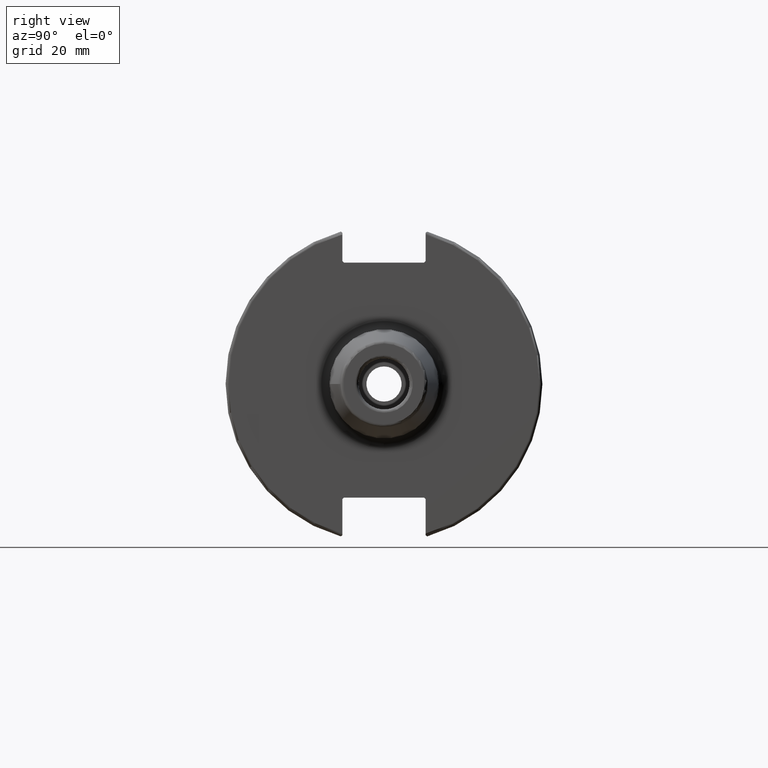
[diagram: clean part render]
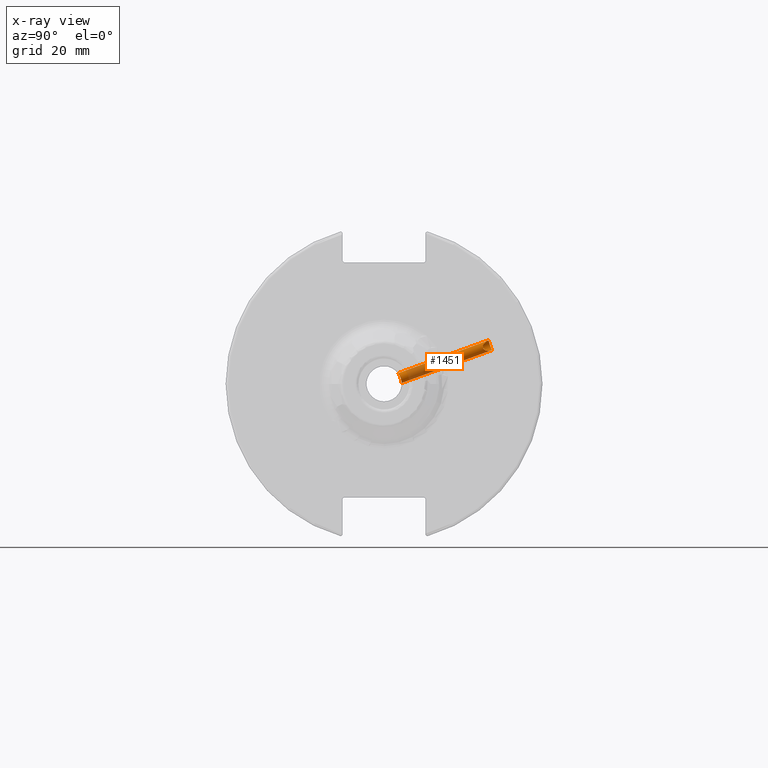
[diagram: x-ray — body ghosted, one internal face saturated and labeled with its STEP entity id]
A machine part, right view, then the same camera in x-ray: the body is ghosted and one INTERNAL B-rep face — a face not visible from any outside direction — is saturated and labeled: STEP entity #1451.
In plain terms, the highlighted cylindrical surface (bore or boss wall) has radius 1.621 mm, axis along (-0, 0.9397, 0.342).
Its self-contained STEP definition (entity closure, byte-faithful):
#35=B_SPLINE_CURVE_WITH_KNOTS('',3,(#2213,#2214,#2215,#2216,#2217,#2218,
#2219,#2220,#2221,#2222),.UNSPECIFIED.,.F.,.F.,(4,2,2,2,4),(0.,0.0614718214850802,
0.12294364297016,0.184397912546895,0.245852182123629),.UNSPECIFIED.);
#36=B_SPLINE_CURVE_WITH_KNOTS('',3,(#2223,#2224,#2225,#2226,#2227,#2228,
#2229,#2230,#2231,#2232,#2233,#2234,#2235,#2236,#2237,#2238,#2239,#2240,
#2241,#2242,#2243,#2244,#2245,#2246,#2247,#2248),.UNSPECIFIED.,.F.,.F.,
(4,2,2,2,2,2,2,2,2,2,2,2,4),(0.245852182123629,0.307306451700363,0.368760721277098,
0.430232542762178,0.491704364247258,0.553176185732339,0.61464800721742,
0.676102276794154,0.737556546370888,0.799010815947622,0.860465085524356,
0.921936907009437,0.983408728494518),.UNSPECIFIED.);
#46=B_SPLINE_CURVE_WITH_KNOTS('',3,(#2493,#2494,#2495,#2496,#2497,#2498,
#2499,#2500,#2501,#2502,#2503,#2504,#2505,#2506,#2507,#2508,#2509,#2510,
#2511,#2512,#2513,#2514,#2515,#2516,#2517,#2518,#2519,#2520,#2521,#2522,
#2523,#2524),.UNSPECIFIED.,.F.,.F.,(4,2,2,2,2,2,2,2,2,2,2,2,2,2,2,4),(0.,
0.0884839677067705,0.176967935413541,0.264588928472714,0.292934680202631,
0.321280431932548,0.349626183662465,0.377971935392382,0.465592928451555,
0.554076896158326,0.642560863865096,0.674019283137882,0.705477702410669,
0.768394540956241,0.83753256912227,0.892424435682429),.UNSPECIFIED.);
#47=B_SPLINE_CURVE_WITH_KNOTS('',3,(#2525,#2526,#2527,#2528,#2529,#2530,
#2531,#2532,#2533,#2534,#2535,#2536),.UNSPECIFIED.,.F.,.F.,(4,2,2,2,2,4),
(0.892424435682429,0.947316302242587,1.01645433040862,1.07937116895419,
1.11082958822697,1.14228800749976),.UNSPECIFIED.);
#113=LINE('',#2537,#203);
#203=VECTOR('',#1848,1.621);
#274=CYLINDRICAL_SURFACE('',#1593,1.621);
#372=FACE_OUTER_BOUND('',#466,.T.);
#466=EDGE_LOOP('',(#1110,#1111,#1112,#1113,#1114,#1115));
#636=VERTEX_POINT('',#2211);
#637=VERTEX_POINT('',#2212);
#671=VERTEX_POINT('',#2491);
#672=VERTEX_POINT('',#2492);
#791=EDGE_CURVE('',#636,#637,#35,.T.);
#792=EDGE_CURVE('',#637,#636,#36,.T.);
#838=EDGE_CURVE('',#671,#672,#46,.T.);
#839=EDGE_CURVE('',#672,#671,#47,.T.);
#840=EDGE_CURVE('',#672,#637,#113,.T.);
#1110=ORIENTED_EDGE('',*,*,#838,.F.);
#1111=ORIENTED_EDGE('',*,*,#839,.F.);
#1112=ORIENTED_EDGE('',*,*,#840,.T.);
#1113=ORIENTED_EDGE('',*,*,#792,.T.);
#1114=ORIENTED_EDGE('',*,*,#791,.T.);
#1115=ORIENTED_EDGE('',*,*,#840,.F.);
#1451=ADVANCED_FACE('',(#372),#274,.F.);
#1593=AXIS2_PLACEMENT_3D('',#2490,#1846,#1847);
#1846=DIRECTION('center_axis',(-1.32999192572579E-16,0.939692620785908,
0.342020143325669));
#1847=DIRECTION('ref_axis',(1.,1.41534784492982E-16,0.));
#1848=DIRECTION('',(1.32999192572579E-16,-0.939692620785908,-0.342020143325669));
#2211=CARTESIAN_POINT('',(11.1341,4.34350102168523,3.30593725358171));
#2212=CARTESIAN_POINT('',(9.5131,5.12931217055988,1.86691695234316));
#2213=CARTESIAN_POINT('Ctrl Pts',(11.1341,4.34350102168523,3.30593725358171));
#2214=CARTESIAN_POINT('Ctrl Pts',(10.9291939283831,4.34350102168523,3.30593725358171));
#2215=CARTESIAN_POINT('Ctrl Pts',(10.7115424025947,4.37013638069442,3.27178259222299));
#2216=CARTESIAN_POINT('Ctrl Pts',(10.3125679493317,4.47126989078602,3.13215558226224));
#2217=CARTESIAN_POINT('Ctrl Pts',(10.1311278244485,4.54501379448816,3.02647292907835));
#2218=CARTESIAN_POINT('Ctrl Pts',(9.8446728921942,4.70080067754294,2.77833574567832));
#2219=CARTESIAN_POINT('Ctrl Pts',(9.72011009499387,4.7934034173384,2.61893812259075));
#2220=CARTESIAN_POINT('Ctrl Pts',(9.55429054985229,4.97289235685391,2.25962271550418));
#2221=CARTESIAN_POINT('Ctrl Pts',(9.5131,5.05925017693119,2.05941069779998));
#2222=CARTESIAN_POINT('Ctrl Pts',(9.5131,5.12931217055988,1.86691695234316));
#2223=CARTESIAN_POINT('Ctrl Pts',(9.5131,5.12931217055988,1.86691695234316));
#2224=CARTESIAN_POINT('Ctrl Pts',(9.5131,5.19937416418858,1.67442320688635));
#2225=CARTESIAN_POINT('Ctrl Pts',(9.55429054985229,5.26191404028911,1.46554216653319));
#2226=CARTESIAN_POINT('Ctrl Pts',(9.72011009499387,5.35538102721666,1.07491732921115));
#2227=CARTESIAN_POINT('Ctrl Pts',(9.8446728921942,5.38690203011294,0.893287772034996));
#2228=CARTESIAN_POINT('Ctrl Pts',(10.1311278244485,5.42706186103005,0.603065783380908));
#2229=CARTESIAN_POINT('Ctrl Pts',(10.3125679493317,5.43850225341052,0.474706506585666));
#2230=CARTESIAN_POINT('Ctrl Pts',(10.7115424025947,5.45078000197209,0.302738644284928));
#2231=CARTESIAN_POINT('Ctrl Pts',(10.9291939283831,5.45233032634704,0.2594537769938));
#2232=CARTESIAN_POINT('Ctrl Pts',(11.3390060716169,5.45233032634704,0.259453776993799));
#2233=CARTESIAN_POINT('Ctrl Pts',(11.5566575974053,5.45078000197209,0.302738644284926));
#2234=CARTESIAN_POINT('Ctrl Pts',(11.9556320506683,5.43850225341052,0.474706506585666));
#2235=CARTESIAN_POINT('Ctrl Pts',(12.1370721755516,5.42706186103004,0.603065783380903));
#2236=CARTESIAN_POINT('Ctrl Pts',(12.4235271078058,5.38690203011293,0.893287772034993));
#2237=CARTESIAN_POINT('Ctrl Pts',(12.5480899050061,5.35538102721666,1.07491732921115));
#2238=CARTESIAN_POINT('Ctrl Pts',(12.7139094501477,5.26191404028911,1.46554216653319));
#2239=CARTESIAN_POINT('Ctrl Pts',(12.7551,5.19937416418858,1.67442320688635));
#2240=CARTESIAN_POINT('Ctrl Pts',(12.7551,5.05925017693118,2.05941069779998));
#2241=CARTESIAN_POINT('Ctrl Pts',(12.7139094501477,4.9728923568539,2.25962271550418));
#2242=CARTESIAN_POINT('Ctrl Pts',(12.5480899050061,4.7934034173384,2.61893812259075));
#2243=CARTESIAN_POINT('Ctrl Pts',(12.4235271078058,4.70080067754294,2.77833574567832));
#2244=CARTESIAN_POINT('Ctrl Pts',(12.1370721755516,4.54501379448815,3.02647292907835));
#2245=CARTESIAN_POINT('Ctrl Pts',(11.9556320506683,4.47126989078602,3.13215558226224));
#2246=CARTESIAN_POINT('Ctrl Pts',(11.5566575974053,4.37013638069442,3.27178259222299));
#2247=CARTESIAN_POINT('Ctrl Pts',(11.3390060716169,4.34350102168523,3.30593725358171));
#2248=CARTESIAN_POINT('Ctrl Pts',(11.1341,4.34350102168523,3.30593725358171));
#2490=CARTESIAN_POINT('Origin',(11.1341,21.5598376450015,7.84713915839248));
#2491=CARTESIAN_POINT('',(11.1341,33.313335016979,10.4000301811349));
#2492=CARTESIAN_POINT('',(9.5131,32.9255829555454,11.9839321416811));
#2493=CARTESIAN_POINT('Ctrl Pts',(11.1341,33.313335016979,10.4000301811349));
#2494=CARTESIAN_POINT('Ctrl Pts',(11.3757060767793,33.1543630852081,10.3421691298865));
#2495=CARTESIAN_POINT('Ctrl Pts',(11.5864820284691,32.9218505690671,10.3113735751054));
#2496=CARTESIAN_POINT('Ctrl Pts',(11.9681018879898,32.4180819286834,10.3035661598069));
#2497=CARTESIAN_POINT('Ctrl Pts',(12.1379400889368,32.1460311578073,10.3288989118134));
#2498=CARTESIAN_POINT('Ctrl Pts',(12.4213114787667,31.6460404618918,10.4484747155027));
#2499=CARTESIAN_POINT('Ctrl Pts',(12.5695213105869,31.350391478186,10.5645115156154));
#2500=CARTESIAN_POINT('Ctrl Pts',(12.6851350131118,31.0645202123338,10.797613403218));
#2501=CARTESIAN_POINT('Ctrl Pts',(12.7111094113745,30.9933030092018,10.8682275910532));
#2502=CARTESIAN_POINT('Ctrl Pts',(12.7461906022264,30.8732584943377,11.0286552191396));
#2503=CARTESIAN_POINT('Ctrl Pts',(12.7551,30.8247283204383,11.1187338581983));
#2504=CARTESIAN_POINT('Ctrl Pts',(12.7551,30.760096199976,11.2963091497399));
#2505=CARTESIAN_POINT('Ctrl Pts',(12.7461906022264,30.7393710369309,11.396507985113));
#2506=CARTESIAN_POINT('Ctrl Pts',(12.7111094113745,30.7282095788841,11.5965658048968));
#2507=CARTESIAN_POINT('Ctrl Pts',(12.6851350131118,30.7373751965893,11.6964369468632));
#2508=CARTESIAN_POINT('Ctrl Pts',(12.5695213105869,30.8065302860973,12.0587578601968));
#2509=CARTESIAN_POINT('Ctrl Pts',(12.4213114787667,30.9584235297988,12.3376867096629));
#2510=CARTESIAN_POINT('Ctrl Pts',(12.1379400889368,31.2645767789862,12.7506749139037));
#2511=CARTESIAN_POINT('Ctrl Pts',(11.9681018879898,31.4566961811531,12.944951792532));
#2512=CARTESIAN_POINT('Ctrl Pts',(11.5864820284691,31.8476238585542,13.2627872056147));
#2513=CARTESIAN_POINT('Ctrl Pts',(11.3757060767793,32.0455337805463,13.3886526064744));
#2514=CARTESIAN_POINT('Ctrl Pts',(11.0482025718087,32.2610244898072,13.4670848104063));
#2515=CARTESIAN_POINT('Ctrl Pts',(10.9546197272613,32.3146654550416,13.4792369583723));
#2516=CARTESIAN_POINT('Ctrl Pts',(10.7595056152646,32.4073631346194,13.4769601376887));
#2517=CARTESIAN_POINT('Ctrl Pts',(10.6579468329885,32.4463573573083,13.4623489695152));
#2518=CARTESIAN_POINT('Ctrl Pts',(10.3586687330207,32.5415491913672,13.3759423222779));
#2519=CARTESIAN_POINT('Ctrl Pts',(10.1659386735598,32.5780714501619,13.2587921009005));
#2520=CARTESIAN_POINT('Ctrl Pts',(9.84844561894806,32.6511585393986,12.9627897133043));
#2521=CARTESIAN_POINT('Ctrl Pts',(9.69712806088231,32.6986445558393,12.7362303482748));
#2522=CARTESIAN_POINT('Ctrl Pts',(9.55236126545399,32.799004604605,12.3622019181971));
#2523=CARTESIAN_POINT('Ctrl Pts',(9.5131,32.8630025419843,12.1558704148403));
#2524=CARTESIAN_POINT('Ctrl Pts',(9.5131,32.9255829555454,11.9839321416811));
#2525=CARTESIAN_POINT('Ctrl Pts',(9.5131,32.9255829555454,11.9839321416811));
#2526=CARTESIAN_POINT('Ctrl Pts',(9.5131,32.9881633691064,11.811993868522));
#2527=CARTESIAN_POINT('Ctrl Pts',(9.55236126545399,33.0717654386517,11.6127976857422));
#2528=CARTESIAN_POINT('Ctrl Pts',(9.69712806088231,33.235306021508,11.2617650894585));
#2529=CARTESIAN_POINT('Ctrl Pts',(9.84844561894806,33.3445591751872,11.0576871238396));
#2530=CARTESIAN_POINT('Ctrl Pts',(10.1659386735598,33.4788378837982,10.7839566642822));
#2531=CARTESIAN_POINT('Ctrl Pts',(10.3586687330207,33.5261629211717,10.6707383327549));
#2532=CARTESIAN_POINT('Ctrl Pts',(10.6579468329885,33.5087828678993,10.5433588693138));
#2533=CARTESIAN_POINT('Ctrl Pts',(10.7595056152646,33.4883034381597,10.5071010619333));
#2534=CARTESIAN_POINT('Ctrl Pts',(10.9546197272613,33.418756407954,10.4457719962213));
#2535=CARTESIAN_POINT('Ctrl Pts',(11.0482025718087,33.369853794469,10.4206013338184));
#2536=CARTESIAN_POINT('Ctrl Pts',(11.1341,33.313335016979,10.4000301811349));
#2537=CARTESIAN_POINT('',(9.5131,21.5598376450015,7.84713915839248));